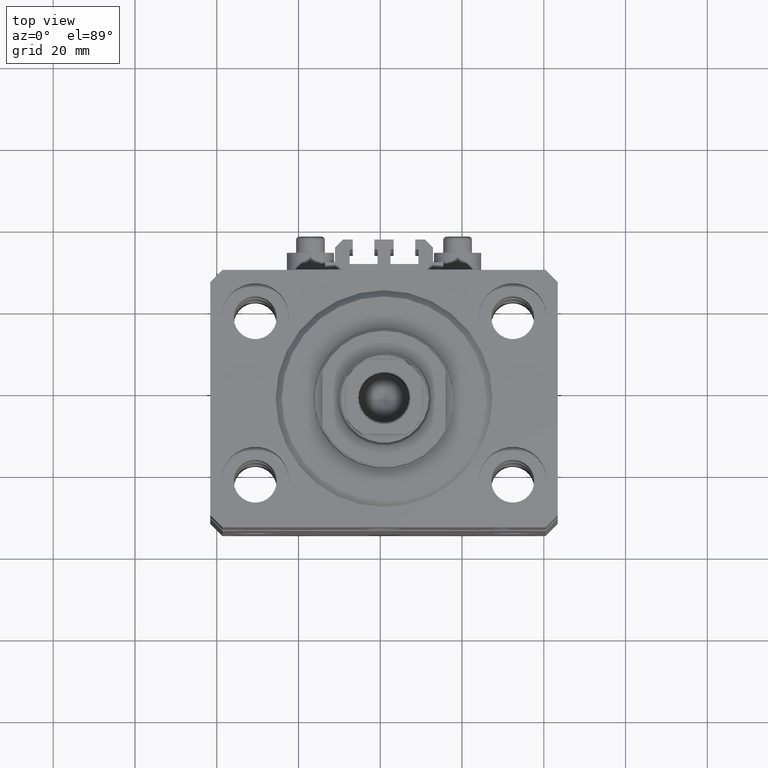
[diagram: clean part render]
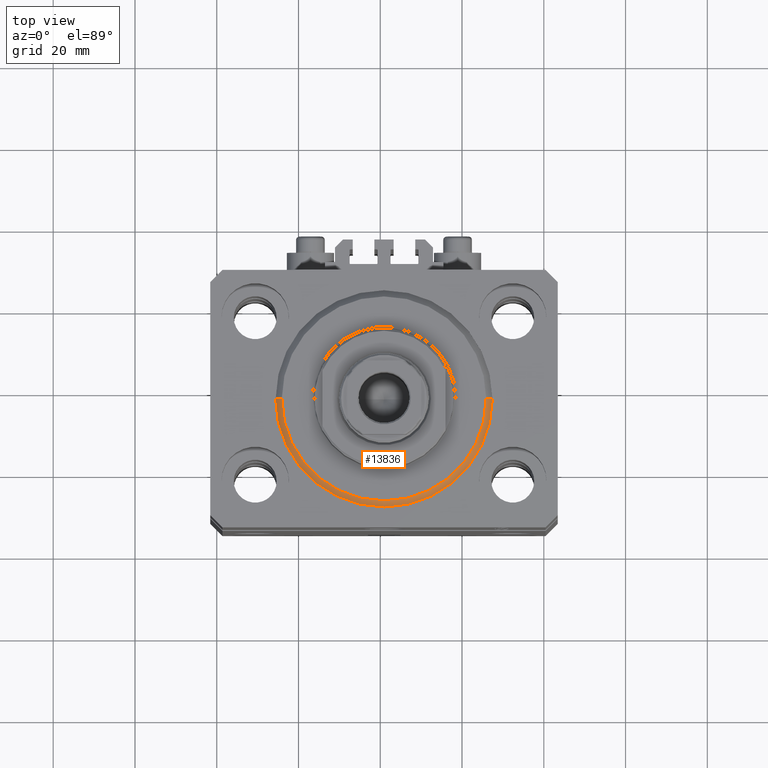
[diagram: same view with one face highlighted and labeled with its STEP entity id]
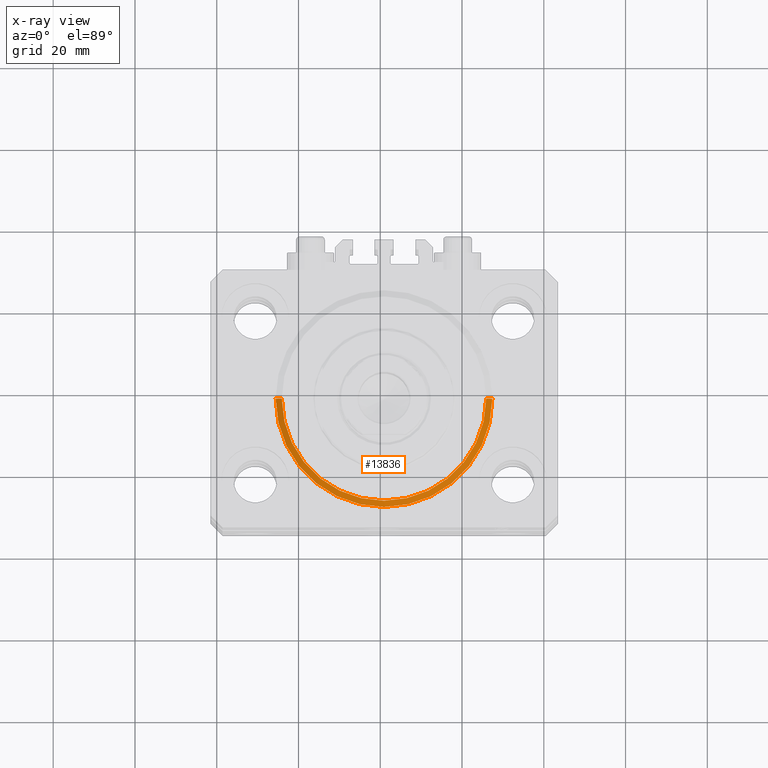
[diagram: x-ray of the same camera — body ghosted, the highlighted face saturated]
A machine part, top view. The second image highlights one B-rep face of the part: STEP entity #13836.
The next image is the same camera in x-ray: the body ghosted, the highlighted face saturated — about 0% of this face is hidden behind the body in this view.
In plain terms, the highlighted conical surface has half-angle 45 deg.
Its self-contained STEP definition (entity closure, byte-faithful):
#195 = VERTEX_POINT ( 'NONE', #12344 ) ;
#442 = CIRCLE ( 'NONE', #9100, 24.99999999999998224 ) ;
#1006 = CARTESIAN_POINT ( 'NONE',  ( -26.50000000000000355, 0.000000000000000000, 1.500000000000018652 ) ) ;
#2296 = VERTEX_POINT ( 'NONE', #23657 ) ;
#3764 = DIRECTION ( 'NONE',  ( 1.000000000000000000, 0.000000000000000000, 0.000000000000000000 ) ) ;
#4117 = VECTOR ( 'NONE', #42170, 1000.000000000000000 ) ;
#9100 = AXIS2_PLACEMENT_3D ( 'NONE', #45322, #11643, #3764 ) ;
#9639 = LINE ( 'NONE', #28110, #24753 ) ;
#9940 = EDGE_CURVE ( 'NONE', #195, #13078, #45134, .T. ) ;
#11643 = DIRECTION ( 'NONE',  ( -0.000000000000000000, -0.000000000000000000, -1.000000000000000000 ) ) ;
#12344 = CARTESIAN_POINT ( 'NONE',  ( -24.99999999999998224, 3.153465507804433615E-15, 0.000000000000000000 ) ) ;
#12903 = AXIS2_PLACEMENT_3D ( 'NONE', #38658, #46267, #34741 ) ;
#13078 = VERTEX_POINT ( 'NONE', #1006 ) ;
#13100 = DIRECTION ( 'NONE',  ( 0.7071067811865483499, 0.000000000000000000, 0.7071067811865466846 ) ) ;
#13337 = EDGE_CURVE ( 'NONE', #13078, #40364, #23873, .T. ) ;
#13836 = ADVANCED_FACE ( 'NONE', ( #46516 ), #30184, .T. ) ;
#16781 = ORIENTED_EDGE ( 'NONE', *, *, #9940, .F. ) ;
#16886 = CARTESIAN_POINT ( 'NONE',  ( 0.000000000000000000, 0.000000000000000000, 1.500000000000018652 ) ) ;
#18356 = AXIS2_PLACEMENT_3D ( 'NONE', #16886, #39018, #31650 ) ;
#18790 = EDGE_CURVE ( 'NONE', #2296, #40364, #9639, .T. ) ;
#23657 = CARTESIAN_POINT ( 'NONE',  ( 24.99999999999998224, 0.000000000000000000, 0.000000000000000000 ) ) ;
#23873 = CIRCLE ( 'NONE', #18356, 26.50000000000000355 ) ;
#24753 = VECTOR ( 'NONE', #13100, 1000.000000000000000 ) ;
#26703 = CARTESIAN_POINT ( 'NONE',  ( -26.50000000000000355, 3.245314017740486554E-15, 1.500000000000018652 ) ) ;
#28110 = CARTESIAN_POINT ( 'NONE',  ( 26.50000000000000355, 0.000000000000000000, 1.500000000000018652 ) ) ;
#29047 = ORIENTED_EDGE ( 'NONE', *, *, #43415, .F. ) ;
#29707 = ORIENTED_EDGE ( 'NONE', *, *, #13337, .F. ) ;
#30184 = CONICAL_SURFACE ( 'NONE', #12903, 26.50000000000000355, 0.7853981633974495002 ) ;
#31650 = DIRECTION ( 'NONE',  ( 1.000000000000000000, 0.000000000000000000, 0.000000000000000000 ) ) ;
#32085 = CARTESIAN_POINT ( 'NONE',  ( 26.50000000000000355, 3.245314017740486554E-15, 1.500000000000018652 ) ) ;
#34741 = DIRECTION ( 'NONE',  ( 1.000000000000000000, 0.000000000000000000, 0.000000000000000000 ) ) ;
#35899 = EDGE_LOOP ( 'NONE', ( #16781, #29047, #36909, #29707 ) ) ;
#36909 = ORIENTED_EDGE ( 'NONE', *, *, #18790, .T. ) ;
#38658 = CARTESIAN_POINT ( 'NONE',  ( 0.000000000000000000, 0.000000000000000000, 1.500000000000018652 ) ) ;
#39018 = DIRECTION ( 'NONE',  ( -0.000000000000000000, -0.000000000000000000, 1.000000000000000000 ) ) ;
#40364 = VERTEX_POINT ( 'NONE', #32085 ) ;
#42170 = DIRECTION ( 'NONE',  ( -0.7071067811865483499, 8.659560562354942719E-17, 0.7071067811865466846 ) ) ;
#43415 = EDGE_CURVE ( 'NONE', #2296, #195, #442, .T. ) ;
#45134 = LINE ( 'NONE', #26703, #4117 ) ;
#45322 = CARTESIAN_POINT ( 'NONE',  ( 0.000000000000000000, 0.000000000000000000, 0.000000000000000000 ) ) ;
#46267 = DIRECTION ( 'NONE',  ( -0.000000000000000000, -0.000000000000000000, 1.000000000000000000 ) ) ;
#46516 = FACE_OUTER_BOUND ( 'NONE', #35899, .T. ) ;